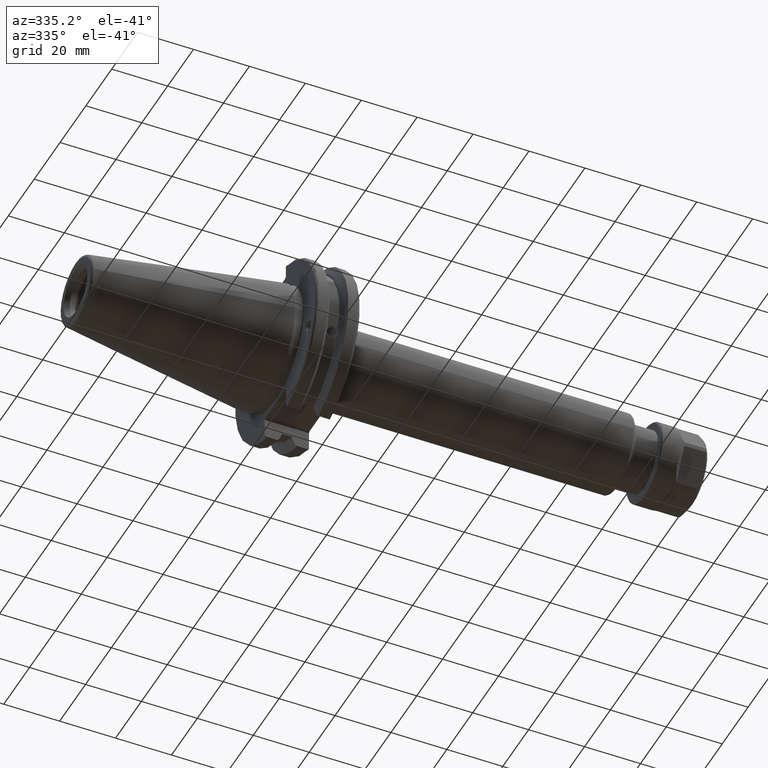
[diagram: clean part render]
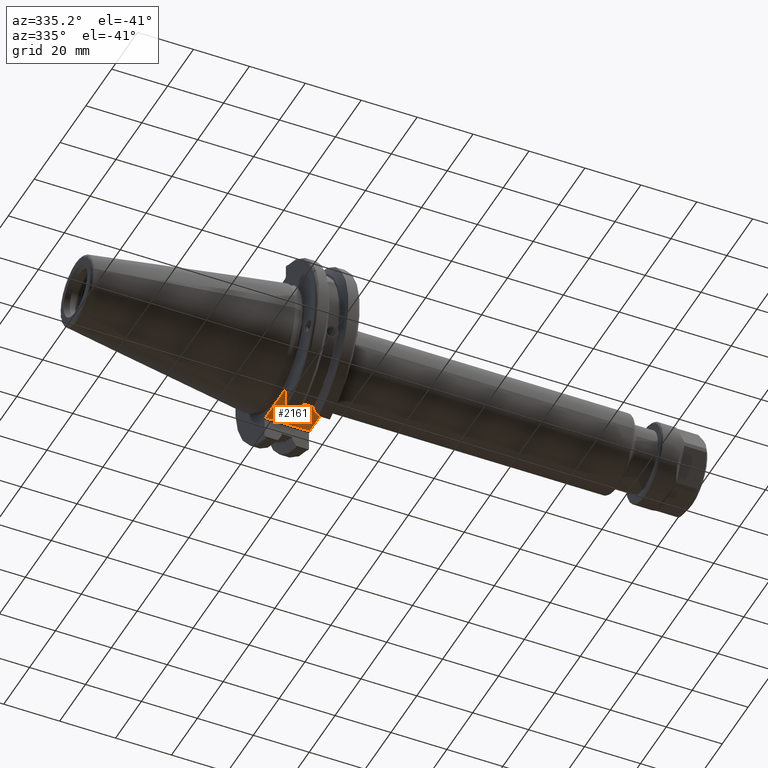
[diagram: same view with one face highlighted and labeled with its STEP entity id]
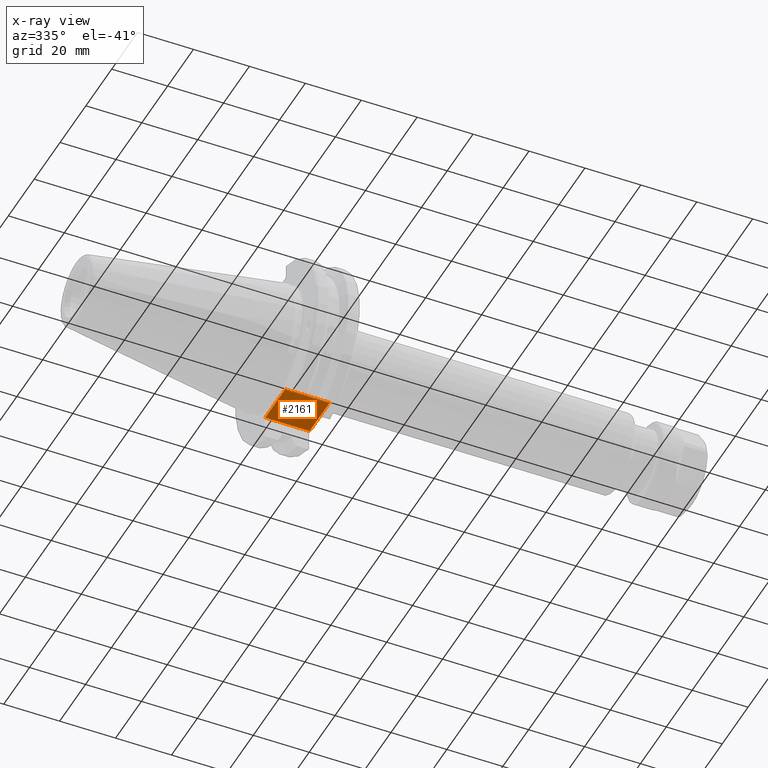
[diagram: x-ray of the same camera — body ghosted, the highlighted face saturated]
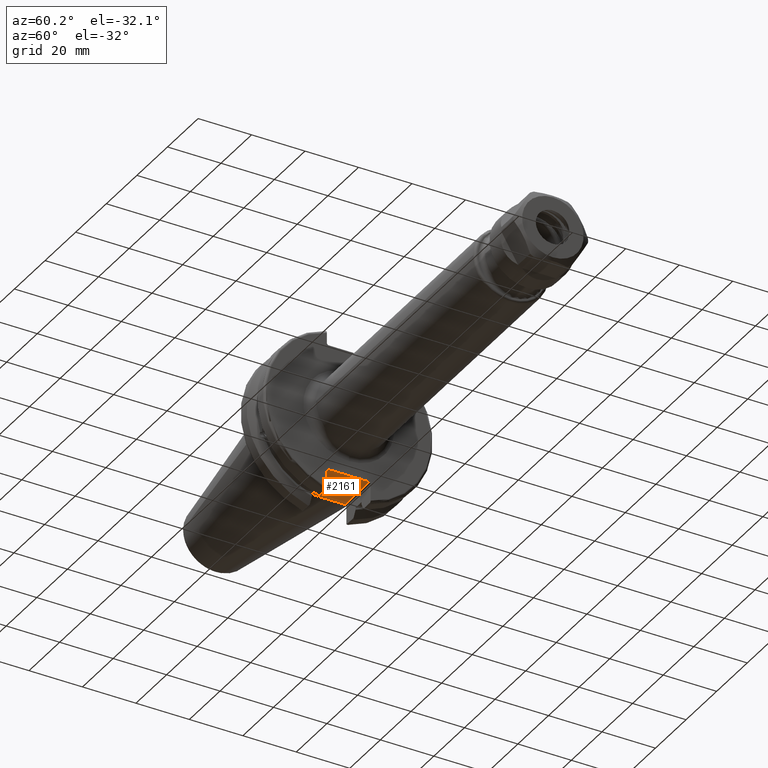
[diagram: same view with one face highlighted and labeled with its STEP entity id]
A machine part, auxiliary view. The second image highlights one B-rep face of the part: STEP entity #2161.
The next image is the same camera in x-ray: the body ghosted, the highlighted face saturated — about 0% of this face is hidden behind the body in this view.
A second angle (auxiliary view) of the same face is appended — the face is thin or edge-on in the first view.
In plain terms, the highlighted planar face has unit normal (0, 0, 1).
Its self-contained STEP definition (entity closure, byte-faithful):
#198=PLANE('',#2446);
#331=FACE_OUTER_BOUND('',#468,.T.);
#468=EDGE_LOOP('',(#1796,#1797,#1798,#1799));
#551=LINE('',#3381,#683);
#591=LINE('',#3721,#723);
#615=LINE('',#3939,#747);
#616=LINE('',#3941,#748);
#683=VECTOR('',#2658,10.);
#723=VECTOR('',#2856,10.);
#747=VECTOR('',#2938,10.);
#748=VECTOR('',#2941,10.);
#945=VERTEX_POINT('',#3378);
#946=VERTEX_POINT('',#3380);
#1024=VERTEX_POINT('',#3718);
#1025=VERTEX_POINT('',#3720);
#1167=EDGE_CURVE('',#945,#946,#551,.T.);
#1273=EDGE_CURVE('',#1024,#1025,#591,.T.);
#1331=EDGE_CURVE('',#946,#1024,#615,.T.);
#1332=EDGE_CURVE('',#1025,#945,#616,.T.);
#1796=ORIENTED_EDGE('',*,*,#1331,.F.);
#1797=ORIENTED_EDGE('',*,*,#1167,.F.);
#1798=ORIENTED_EDGE('',*,*,#1332,.F.);
#1799=ORIENTED_EDGE('',*,*,#1273,.F.);
#2161=ADVANCED_FACE('',(#331),#198,.F.);
#2446=AXIS2_PLACEMENT_3D('',#3940,#2939,#2940);
#2658=DIRECTION('',(0.,1.,0.));
#2856=DIRECTION('',(0.,-1.,0.));
#2938=DIRECTION('',(-1.,-1.31581988103722E-16,0.));
#2939=DIRECTION('center_axis',(0.,0.,1.));
#2940=DIRECTION('ref_axis',(1.,0.,0.));
#2941=DIRECTION('',(1.,0.,0.));
#3378=CARTESIAN_POINT('',(19.05,-7.69,-22.6));
#3380=CARTESIAN_POINT('',(19.05,7.69,-22.6));
#3381=CARTESIAN_POINT('',(19.05,-2.77555756156289E-16,-22.6));
#3718=CARTESIAN_POINT('',(3.175,7.69,-22.6));
#3720=CARTESIAN_POINT('',(3.175,-7.69,-22.6));
#3721=CARTESIAN_POINT('',(3.175,15.875,-22.6));
#3939=CARTESIAN_POINT('',(9.44125,7.69,-22.6));
#3940=CARTESIAN_POINT('Origin',(15.7075,-5.55111512312578E-16,-22.6));
#3941=CARTESIAN_POINT('',(17.87875,-7.69,-22.6));